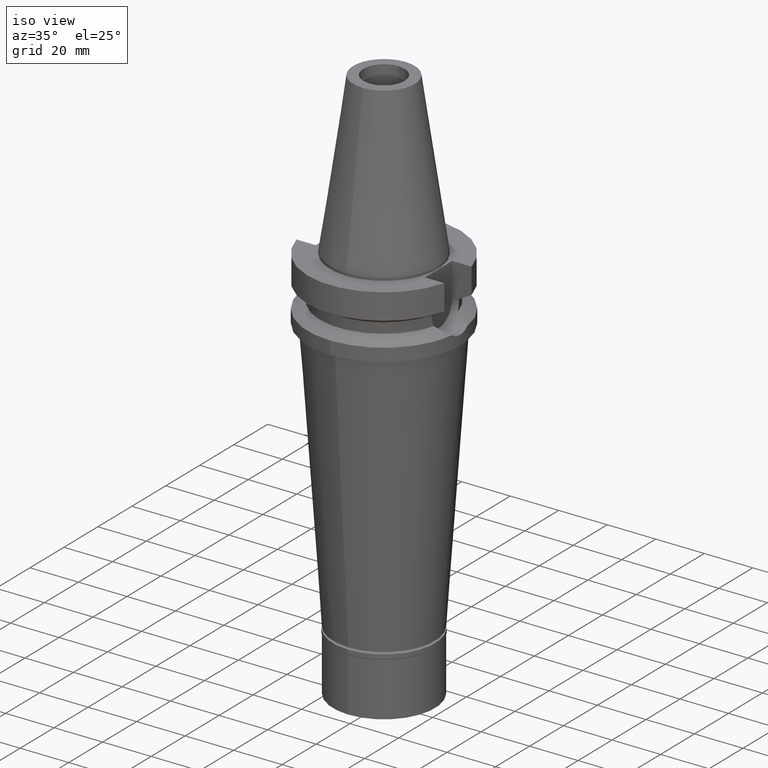
[diagram: clean part render]
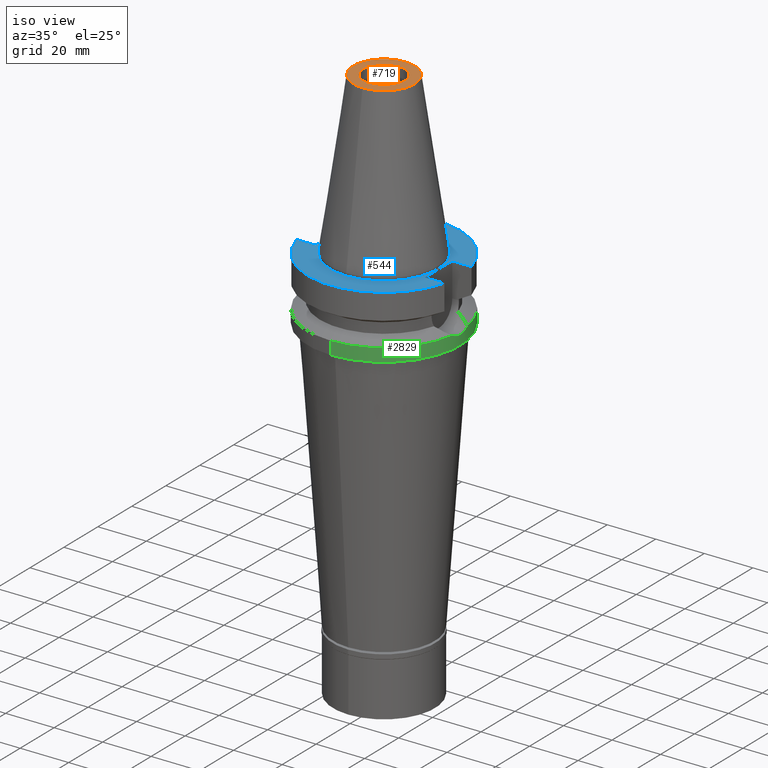
[diagram: same view with three faces highlighted in distinct colors, each labeled with its STEP entity id]
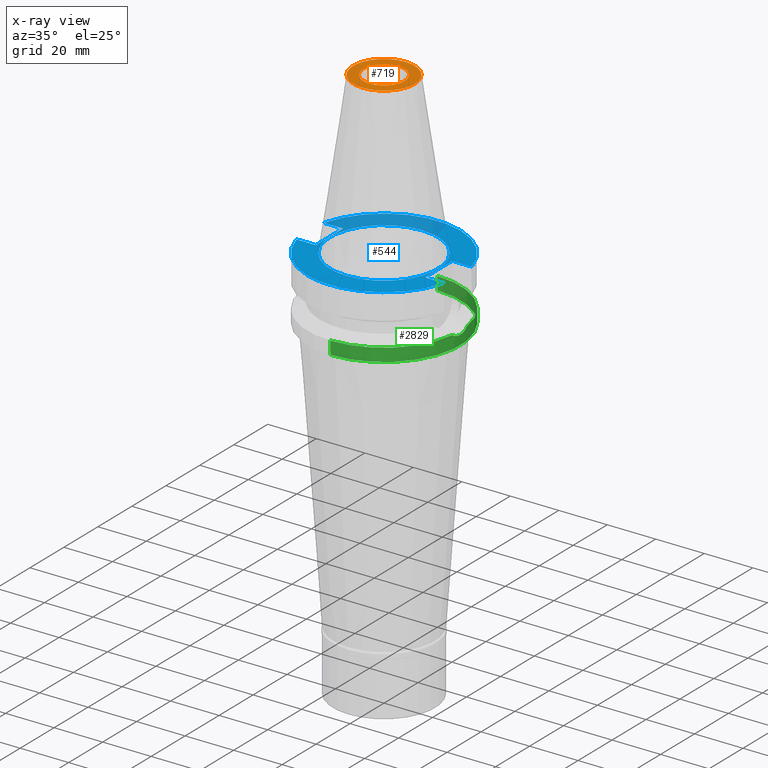
[diagram: x-ray of the same camera — body ghosted, the three highlighted faces saturated]
A machine part, iso view with three faces highlighted in distinct colors.
The next image is the same camera in x-ray (body ghosted, the three faces saturated) — at least one of them is partly hidden behind the body in this view.
Their STEP definitions:

[orange] entity #719 — the highlighted planar face has unit normal (0, 0, -1).
#2 = CARTESIAN_POINT ( 'NONE',  ( 0.0000000000000000000, 1.625106302469000024E-14, 65.40000000000000568 ) ) ;
#180 = CARTESIAN_POINT ( 'NONE',  ( 0.0000000000000000000, 8.500000000000000000, 65.40000000000000568 ) ) ;
#226 = DIRECTION ( 'NONE',  ( 0.0000000000000000000, -1.000000000000000000, 0.0000000000000000000 ) ) ;
#237 = CARTESIAN_POINT ( 'NONE',  ( 0.0000000000000000000, 1.625106302469000024E-14, 65.40000000000000568 ) ) ;
#313 = ORIENTED_EDGE ( 'NONE', *, *, #2986, .F. ) ;
#354 = EDGE_LOOP ( 'NONE', ( #313, #875 ) ) ;
#365 = VERTEX_POINT ( 'NONE', #180 ) ;
#570 = CIRCLE ( 'NONE', #2200, 8.500000000000000000 ) ;
#678 = CIRCLE ( 'NONE', #2450, 12.68766899429999917 ) ;
#689 = EDGE_LOOP ( 'NONE', ( #1551, #1581 ) ) ;
#708 = DIRECTION ( 'NONE',  ( 0.0000000000000000000, 0.0000000000000000000, 1.000000000000000000 ) ) ;
#719 = ADVANCED_FACE ( 'NONE', ( #766, #2492 ), #1759, .F. ) ;
#749 = DIRECTION ( 'NONE',  ( 0.0000000000000000000, -1.000000000000000000, 0.0000000000000000000 ) ) ;
#766 = FACE_OUTER_BOUND ( 'NONE', #354, .T. ) ;
#875 = ORIENTED_EDGE ( 'NONE', *, *, #2004, .F. ) ;
#928 = CIRCLE ( 'NONE', #2596, 12.68766899429999917 ) ;
#998 = DIRECTION ( 'NONE',  ( 0.0000000000000000000, 0.0000000000000000000, -1.000000000000000000 ) ) ;
#1007 = CARTESIAN_POINT ( 'NONE',  ( 0.0000000000000000000, -12.68766899429999917, 65.40000000000000568 ) ) ;
#1008 = CARTESIAN_POINT ( 'NONE',  ( 0.0000000000000000000, 2.025565805790000122E-14, 65.40000000000000568 ) ) ;
#1163 = DIRECTION ( 'NONE',  ( 0.0000000000000000000, 1.000000000000000000, 0.0000000000000000000 ) ) ;
#1178 = CIRCLE ( 'NONE', #2949, 8.500000000000000000 ) ;
#1386 = DIRECTION ( 'NONE',  ( 0.0000000000000000000, 0.0000000000000000000, 1.000000000000000000 ) ) ;
#1464 = DIRECTION ( 'NONE',  ( 0.0000000000000000000, -1.000000000000000000, 0.0000000000000000000 ) ) ;
#1470 = EDGE_CURVE ( 'NONE', #1555, #365, #1178, .T. ) ;
#1551 = ORIENTED_EDGE ( 'NONE', *, *, #2871, .F. ) ;
#1555 = VERTEX_POINT ( 'NONE', #2395 ) ;
#1581 = ORIENTED_EDGE ( 'NONE', *, *, #1470, .F. ) ;
#1759 = PLANE ( 'NONE',  #2345 ) ;
#1953 = DIRECTION ( 'NONE',  ( 0.0000000000000000000, 0.0000000000000000000, -1.000000000000000000 ) ) ;
#1960 = CARTESIAN_POINT ( 'NONE',  ( 0.0000000000000000000, 2.162052691555000099E-14, 65.40000000000000568 ) ) ;
#2004 = EDGE_CURVE ( 'NONE', #3077, #2637, #928, .T. ) ;
#2200 = AXIS2_PLACEMENT_3D ( 'NONE', #2622, #1386, #1163 ) ;
#2345 = AXIS2_PLACEMENT_3D ( 'NONE', #1008, #998, #749 ) ;
#2395 = CARTESIAN_POINT ( 'NONE',  ( 0.0000000000000000000, -8.500000000000000000, 65.40000000000000568 ) ) ;
#2450 = AXIS2_PLACEMENT_3D ( 'NONE', #237, #1953, #3122 ) ;
#2492 = FACE_BOUND ( 'NONE', #689, .T. ) ;
#2596 = AXIS2_PLACEMENT_3D ( 'NONE', #2, #2665, #226 ) ;
#2622 = CARTESIAN_POINT ( 'NONE',  ( 0.0000000000000000000, 2.162052691555000099E-14, 65.40000000000000568 ) ) ;
#2637 = VERTEX_POINT ( 'NONE', #2837 ) ;
#2665 = DIRECTION ( 'NONE',  ( 0.0000000000000000000, 0.0000000000000000000, -1.000000000000000000 ) ) ;
#2837 = CARTESIAN_POINT ( 'NONE',  ( 0.0000000000000000000, 12.68766899429999917, 65.40000000000000568 ) ) ;
#2871 = EDGE_CURVE ( 'NONE', #365, #1555, #570, .T. ) ;
#2949 = AXIS2_PLACEMENT_3D ( 'NONE', #1960, #708, #1464 ) ;
#2986 = EDGE_CURVE ( 'NONE', #2637, #3077, #678, .T. ) ;
#3077 = VERTEX_POINT ( 'NONE', #1007 ) ;
#3122 = DIRECTION ( 'NONE',  ( 0.0000000000000000000, 1.000000000000000000, 0.0000000000000000000 ) ) ;

[blue] entity #544 — the highlighted planar face has unit normal (0, 0, -1).
#31 = CARTESIAN_POINT ( 'NONE',  ( -22.50000000000000000, 8.050000000000000711, -1.000000000000000000 ) ) ;
#42 = ORIENTED_EDGE ( 'NONE', *, *, #1242, .F. ) ;
#150 = LINE ( 'NONE', #660, #2689 ) ;
#219 = CARTESIAN_POINT ( 'NONE',  ( 30.45402272279000044, -8.050000000000000711, -1.000000000000000000 ) ) ;
#243 = EDGE_CURVE ( 'NONE', #795, #2275, #1924, .T. ) ;
#266 = ORIENTED_EDGE ( 'NONE', *, *, #243, .F. ) ;
#307 = DIRECTION ( 'NONE',  ( 0.0000000000000000000, 1.000000000000000000, 0.0000000000000000000 ) ) ;
#324 = DIRECTION ( 'NONE',  ( 1.000000000000000000, -3.506251283225999947E-14, 0.0000000000000000000 ) ) ;
#339 = EDGE_CURVE ( 'NONE', #3072, #950, #2762, .T. ) ;
#364 = DIRECTION ( 'NONE',  ( 0.0000000000000000000, 0.0000000000000000000, -1.000000000000000000 ) ) ;
#447 = VERTEX_POINT ( 'NONE', #591 ) ;
#472 = DIRECTION ( 'NONE',  ( -1.000000000000000000, 3.550916904668000126E-14, 0.0000000000000000000 ) ) ;
#544 = ADVANCED_FACE ( 'NONE', ( #2874, #2168 ), #3124, .F. ) ;
#591 = CARTESIAN_POINT ( 'NONE',  ( 30.45402272279000044, 8.050000000000000711, -1.000000000000000000 ) ) ;
#625 = CARTESIAN_POINT ( 'NONE',  ( 0.0000000000000000000, 2.162052691555000099E-14, -1.000000000000000000 ) ) ;
#646 = DIRECTION ( 'NONE',  ( 0.0000000000000000000, -1.000000000000000000, 0.0000000000000000000 ) ) ;
#649 = CARTESIAN_POINT ( 'NONE',  ( 0.0000000000000000000, 22.22500000000000142, -1.000000000000000000 ) ) ;
#660 = CARTESIAN_POINT ( 'NONE',  ( 22.50000000000000000, 8.050000000000000711, -1.000000000000000000 ) ) ;
#683 = EDGE_LOOP ( 'NONE', ( #266, #799 ) ) ;
#747 = DIRECTION ( 'NONE',  ( 0.0000000000000000000, 1.000000000000000000, 0.0000000000000000000 ) ) ;
#795 = VERTEX_POINT ( 'NONE', #649 ) ;
#799 = ORIENTED_EDGE ( 'NONE', *, *, #1819, .F. ) ;
#805 = CARTESIAN_POINT ( 'NONE',  ( 22.50000000000000000, 8.050000000000000711, -1.000000000000000000 ) ) ;
#816 = VECTOR ( 'NONE', #472, 1000.000000000000000 ) ;
#857 = DIRECTION ( 'NONE',  ( 0.0000000000000000000, 1.000000000000000000, 0.0000000000000000000 ) ) ;
#863 = AXIS2_PLACEMENT_3D ( 'NONE', #2554, #2324, #307 ) ;
#920 = CARTESIAN_POINT ( 'NONE',  ( 22.50000000000000000, 8.050000000000000711, -1.000000000000000000 ) ) ;
#950 = VERTEX_POINT ( 'NONE', #1694 ) ;
#955 = ORIENTED_EDGE ( 'NONE', *, *, #2506, .F. ) ;
#967 = VERTEX_POINT ( 'NONE', #219 ) ;
#981 = ORIENTED_EDGE ( 'NONE', *, *, #1459, .T. ) ;
#995 = CARTESIAN_POINT ( 'NONE',  ( -22.50000000000000000, -8.050000000000000711, -1.000000000000000000 ) ) ;
#1140 = CARTESIAN_POINT ( 'NONE',  ( -22.50000000000000000, 8.050000000000000711, -1.000000000000000000 ) ) ;
#1150 = EDGE_CURVE ( 'NONE', #1374, #447, #1505, .T. ) ;
#1242 = EDGE_CURVE ( 'NONE', #1374, #1350, #150, .T. ) ;
#1300 = ORIENTED_EDGE ( 'NONE', *, *, #2750, .F. ) ;
#1313 = CARTESIAN_POINT ( 'NONE',  ( 0.0000000000000000000, 2.162052691555000099E-14, -1.000000000000000000 ) ) ;
#1332 = VECTOR ( 'NONE', #747, 1000.000000000000000 ) ;
#1350 = VERTEX_POINT ( 'NONE', #2129 ) ;
#1353 = DIRECTION ( 'NONE',  ( 1.000000000000000000, 3.573249715389999860E-14, 0.0000000000000000000 ) ) ;
#1374 = VERTEX_POINT ( 'NONE', #920 ) ;
#1378 = VECTOR ( 'NONE', #324, 1000.000000000000000 ) ;
#1433 = DIRECTION ( 'NONE',  ( 0.0000000000000000000, 0.0000000000000000000, -1.000000000000000000 ) ) ;
#1459 = EDGE_CURVE ( 'NONE', #2574, #2144, #2170, .T. ) ;
#1505 = LINE ( 'NONE', #805, #1378 ) ;
#1567 = DIRECTION ( 'NONE',  ( 0.0000000000000000000, -1.000000000000000000, 0.0000000000000000000 ) ) ;
#1619 = DIRECTION ( 'NONE',  ( -1.000000000000000000, -3.550916904668000126E-14, 0.0000000000000000000 ) ) ;
#1632 = AXIS2_PLACEMENT_3D ( 'NONE', #1313, #2362, #857 ) ;
#1694 = CARTESIAN_POINT ( 'NONE',  ( -30.45402272279000044, 8.050000000000000711, -1.000000000000000000 ) ) ;
#1698 = DIRECTION ( 'NONE',  ( 0.0000000000000000000, -1.000000000000000000, 0.0000000000000000000 ) ) ;
#1792 = LINE ( 'NONE', #2066, #2546 ) ;
#1806 = CARTESIAN_POINT ( 'NONE',  ( -22.50000000000000000, -8.050000000000000711, -1.000000000000000000 ) ) ;
#1819 = EDGE_CURVE ( 'NONE', #2275, #795, #2241, .T. ) ;
#1924 = CIRCLE ( 'NONE', #863, 22.22500000000000142 ) ;
#1944 = CARTESIAN_POINT ( 'NONE',  ( -22.50000000000000000, -8.050000000000000711, -1.000000000000000000 ) ) ;
#1985 = ORIENTED_EDGE ( 'NONE', *, *, #339, .F. ) ;
#2042 = AXIS2_PLACEMENT_3D ( 'NONE', #2760, #364, #1567 ) ;
#2066 = CARTESIAN_POINT ( 'NONE',  ( 22.50000000000000000, -8.050000000000000711, -1.000000000000000000 ) ) ;
#2129 = CARTESIAN_POINT ( 'NONE',  ( 22.50000000000000000, -8.050000000000000711, -1.000000000000000000 ) ) ;
#2144 = VERTEX_POINT ( 'NONE', #2453 ) ;
#2168 = FACE_BOUND ( 'NONE', #683, .T. ) ;
#2170 = LINE ( 'NONE', #1944, #816 ) ;
#2241 = CIRCLE ( 'NONE', #2793, 22.22500000000000142 ) ;
#2275 = VERTEX_POINT ( 'NONE', #2938 ) ;
#2324 = DIRECTION ( 'NONE',  ( 0.0000000000000000000, 0.0000000000000000000, 1.000000000000000000 ) ) ;
#2355 = ORIENTED_EDGE ( 'NONE', *, *, #2563, .F. ) ;
#2362 = DIRECTION ( 'NONE',  ( 0.0000000000000000000, 0.0000000000000000000, -1.000000000000000000 ) ) ;
#2366 = DIRECTION ( 'NONE',  ( 0.0000000000000000000, 0.0000000000000000000, 1.000000000000000000 ) ) ;
#2377 = CARTESIAN_POINT ( 'NONE',  ( 0.0000000000000000000, 1.212400331155999925E-14, -1.000000000000000000 ) ) ;
#2404 = LINE ( 'NONE', #995, #1332 ) ;
#2442 = ORIENTED_EDGE ( 'NONE', *, *, #1150, .T. ) ;
#2448 = EDGE_CURVE ( 'NONE', #1350, #967, #1792, .T. ) ;
#2453 = CARTESIAN_POINT ( 'NONE',  ( -30.45402272279000044, -8.050000000000000711, -1.000000000000000000 ) ) ;
#2506 = EDGE_CURVE ( 'NONE', #967, #2144, #2742, .T. ) ;
#2546 = VECTOR ( 'NONE', #1353, 1000.000000000000000 ) ;
#2554 = CARTESIAN_POINT ( 'NONE',  ( 0.0000000000000000000, 2.162052691555000099E-14, -1.000000000000000000 ) ) ;
#2563 = EDGE_CURVE ( 'NONE', #950, #447, #3002, .T. ) ;
#2571 = ORIENTED_EDGE ( 'NONE', *, *, #2448, .F. ) ;
#2574 = VERTEX_POINT ( 'NONE', #1806 ) ;
#2588 = VECTOR ( 'NONE', #1619, 1000.000000000000000 ) ;
#2689 = VECTOR ( 'NONE', #646, 1000.000000000000000 ) ;
#2734 = AXIS2_PLACEMENT_3D ( 'NONE', #2377, #1433, #1698 ) ;
#2742 = CIRCLE ( 'NONE', #2042, 31.50000000000000000 ) ;
#2750 = EDGE_CURVE ( 'NONE', #2574, #3072, #2404, .T. ) ;
#2760 = CARTESIAN_POINT ( 'NONE',  ( 0.0000000000000000000, 2.162052691555000099E-14, -1.000000000000000000 ) ) ;
#2762 = LINE ( 'NONE', #1140, #2588 ) ;
#2793 = AXIS2_PLACEMENT_3D ( 'NONE', #625, #2366, #3045 ) ;
#2874 = FACE_OUTER_BOUND ( 'NONE', #2875, .T. ) ;
#2875 = EDGE_LOOP ( 'NONE', ( #981, #955, #2571, #42, #2442, #2355, #1985, #1300 ) ) ;
#2938 = CARTESIAN_POINT ( 'NONE',  ( 0.0000000000000000000, -22.22500000000000142, -1.000000000000000000 ) ) ;
#3002 = CIRCLE ( 'NONE', #1632, 31.50000000000000000 ) ;
#3045 = DIRECTION ( 'NONE',  ( 0.0000000000000000000, -1.000000000000000000, 0.0000000000000000000 ) ) ;
#3072 = VERTEX_POINT ( 'NONE', #31 ) ;
#3124 = PLANE ( 'NONE',  #2734 ) ;

[green] entity #2829 — the highlighted cylindrical surface (partial cylindrical patch) has radius 31.5 mm, axis along (0, 0, -1).
#86 = CARTESIAN_POINT ( 'NONE',  ( 31.38990480636528346, -2.631663214737754330, -22.55863313227447264 ) ) ;
#102 = CIRCLE ( 'NONE', #1624, 31.50000000000000000 ) ;
#146 = CARTESIAN_POINT ( 'NONE',  ( 0.0000000000000000000, 31.50000000000000000, -21.63449434733000132 ) ) ;
#161 = CYLINDRICAL_SURFACE ( 'NONE', #1483, 31.50000000000000000 ) ;
#168 = LINE ( 'NONE', #1625, #2539 ) ;
#179 = B_SPLINE_CURVE_WITH_KNOTS ( 'NONE', 3,
 ( #969, #495, #1458, #836, #1536, #2011, #86, #2529, #305, #818, #1063, #582, #2023, #596, #2269 ),
 .UNSPECIFIED., .F., .F.,
 ( 4, 2, 2, 1, 1, 1, 2, 2, 4 ),
 ( 0.0000000000000000000, 0.2500000000000097700, 0.3750000000000146549, 0.4375000000000168754, 0.4687500000000180411, 0.4843750000000193179, 0.4921875000000195954, 0.5000000000000198730, 1.000000000000000000 ),
 .UNSPECIFIED. ) ;
#199 = VERTEX_POINT ( 'NONE', #2812 ) ;
#238 = CARTESIAN_POINT ( 'NONE',  ( 0.0000000000000000000, 2.162052691555000099E-14, -27.00000000000000000 ) ) ;
#284 = EDGE_CURVE ( 'NONE', #1687, #3147, #2266, .T. ) ;
#300 = CARTESIAN_POINT ( 'NONE',  ( 31.50000000000000000, 0.0000000000000000000, -23.00000000000000000 ) ) ;
#305 = CARTESIAN_POINT ( 'NONE',  ( 31.40779731677324804, -2.407006719812131657, -22.63177601695514696 ) ) ;
#346 = CARTESIAN_POINT ( 'NONE',  ( 31.50000000000000000, 0.3826895716287472271, -23.00000000000000355 ) ) ;
#415 = AXIS2_PLACEMENT_3D ( 'NONE', #1550, #1263, #1561 ) ;
#452 = DIRECTION ( 'NONE',  ( 0.0000000000000000000, 1.000000000000000000, 0.0000000000000000000 ) ) ;
#495 = CARTESIAN_POINT ( 'NONE',  ( 31.23204570955487824, -4.116806570564255807, -21.88192522055955536 ) ) ;
#582 = CARTESIAN_POINT ( 'NONE',  ( 31.41247682364344840, -2.345069939845430440, -22.65086411841247127 ) ) ;
#596 = CARTESIAN_POINT ( 'NONE',  ( 31.49999999999999289, -0.7653601880254619072, -23.00000000000000355 ) ) ;
#637 = DIRECTION ( 'NONE',  ( 0.0000000000000000000, 0.0000000000000000000, -1.000000000000000000 ) ) ;
#638 = CARTESIAN_POINT ( 'NONE',  ( 31.50000000000000000, 0.0000000000000000000, -23.00000000000000000 ) ) ;
#657 = EDGE_CURVE ( 'NONE', #1970, #3147, #102, .T. ) ;
#663 = EDGE_CURVE ( 'NONE', #199, #3135, #2189, .T. ) ;
#818 = CARTESIAN_POINT ( 'NONE',  ( 31.41021000375918959, -2.375210907036503727, -22.64161853887501508 ) ) ;
#836 = CARTESIAN_POINT ( 'NONE',  ( 31.33669595906752292, -3.204496348448598209, -22.33738104418285531 ) ) ;
#858 = EDGE_LOOP ( 'NONE', ( #2015, #2219, #1283, #1135, #2327, #2102, #970 ) ) ;
#913 = FACE_OUTER_BOUND ( 'NONE', #858, .T. ) ;
#969 = CARTESIAN_POINT ( 'NONE',  ( 31.17899877608999759, -4.485536235554000051, -21.63449434733000132 ) ) ;
#970 = ORIENTED_EDGE ( 'NONE', *, *, #1067, .F. ) ;
#980 = DIRECTION ( 'NONE',  ( 0.0000000000000000000, -1.000000000000000000, 0.0000000000000000000 ) ) ;
#1009 = CARTESIAN_POINT ( 'NONE',  ( 0.0000000000000000000, -31.50000000000000000, -21.63449434733000132 ) ) ;
#1063 = CARTESIAN_POINT ( 'NONE',  ( 31.41180480594701763, -2.354042824091584940, -22.64812347152304284 ) ) ;
#1067 = EDGE_CURVE ( 'NONE', #2536, #1687, #179, .T. ) ;
#1092 = EDGE_CURVE ( 'NONE', #2536, #1910, #1372, .T. ) ;
#1097 = CARTESIAN_POINT ( 'NONE',  ( 31.17899877608999759, 4.485536235554000051, -21.63449434733000132 ) ) ;
#1135 = ORIENTED_EDGE ( 'NONE', *, *, #1400, .F. ) ;
#1136 = DIRECTION ( 'NONE',  ( 0.0000000000000000000, -1.000000000000000000, 0.0000000000000000000 ) ) ;
#1137 = CARTESIAN_POINT ( 'NONE',  ( 31.49278049642385824, 0.7713483626019259631, -22.97266538105663614 ) ) ;
#1139 = CARTESIAN_POINT ( 'NONE',  ( 31.44585372317890304, 1.845677893369964462, -22.78619768338460005 ) ) ;
#1144 = DIRECTION ( 'NONE',  ( 0.0000000000000000000, 1.099151708819000049E-13, -1.000000000000000000 ) ) ;
#1263 = DIRECTION ( 'NONE',  ( 0.0000000000000000000, 0.0000000000000000000, -1.000000000000000000 ) ) ;
#1277 = VECTOR ( 'NONE', #2245, 1000.000000000000000 ) ;
#1283 = ORIENTED_EDGE ( 'NONE', *, *, #663, .T. ) ;
#1335 = CARTESIAN_POINT ( 'NONE',  ( 31.17899877608999759, -4.485536235554000051, -21.63449434733000132 ) ) ;
#1357 = CARTESIAN_POINT ( 'NONE',  ( 31.42560527174269325, 2.162789075918809534, -22.70431026641477601 ) ) ;
#1372 = CIRCLE ( 'NONE', #415, 31.50000000000001421 ) ;
#1400 = EDGE_CURVE ( 'NONE', #1970, #3135, #168, .T. ) ;
#1404 = CARTESIAN_POINT ( 'NONE',  ( 31.41414960750307017, 2.322543565497372953, -22.65768531844570077 ) ) ;
#1458 = CARTESIAN_POINT ( 'NONE',  ( 31.27810087198237099, -3.746788055358713621, -22.08602560427802786 ) ) ;
#1483 = AXIS2_PLACEMENT_3D ( 'NONE', #3103, #637, #1136 ) ;
#1491 = CARTESIAN_POINT ( 'NONE',  ( 31.36321233040992240, 3.008498623022830110, -22.44996234364747423 ) ) ;
#1536 = CARTESIAN_POINT ( 'NONE',  ( 31.35447971200322570, -3.025805952337123461, -22.41205623236864852 ) ) ;
#1550 = CARTESIAN_POINT ( 'NONE',  ( 0.0000000000000000000, 0.0000000000000000000, -21.63449434733000132 ) ) ;
#1561 = DIRECTION ( 'NONE',  ( 0.9898094849552905306, -0.1423979757318985240, 0.0000000000000000000 ) ) ;
#1624 = AXIS2_PLACEMENT_3D ( 'NONE', #2124, #2886, #452 ) ;
#1625 = CARTESIAN_POINT ( 'NONE',  ( 0.0000000000000000000, 31.50000000000000000, -21.63449434733000132 ) ) ;
#1653 = CARTESIAN_POINT ( 'NONE',  ( 31.28508993674450522, 3.748095716842307912, -22.12934347074813246 ) ) ;
#1687 = VERTEX_POINT ( 'NONE', #300 ) ;
#1848 = CARTESIAN_POINT ( 'NONE',  ( 31.41516378268383036, 2.308787884451288352, -22.66181946406428338 ) ) ;
#1865 = CARTESIAN_POINT ( 'NONE',  ( 0.0000000000000000000, -31.50000000000000000, -21.63449434733000132 ) ) ;
#1873 = CARTESIAN_POINT ( 'NONE',  ( 31.41958431856491885, 2.247983644780538359, -22.67982499013886866 ) ) ;
#1905 = CARTESIAN_POINT ( 'NONE',  ( 31.17899877608999759, 4.485536235554000051, -21.63449434733000132 ) ) ;
#1910 = VERTEX_POINT ( 'NONE', #1865 ) ;
#1970 = VERTEX_POINT ( 'NONE', #146 ) ;
#2011 = CARTESIAN_POINT ( 'NONE',  ( 31.37853342726776162, -2.762293135434263469, -22.51181577750941898 ) ) ;
#2015 = ORIENTED_EDGE ( 'NONE', *, *, #1092, .T. ) ;
#2023 = CARTESIAN_POINT ( 'NONE',  ( 31.47112637481020414, -1.555232886057160702, -22.89002501745331486 ) ) ;
#2102 = ORIENTED_EDGE ( 'NONE', *, *, #284, .F. ) ;
#2124 = CARTESIAN_POINT ( 'NONE',  ( 0.0000000000000000000, 0.0000000000000000000, -21.63449434733000132 ) ) ;
#2180 = DIRECTION ( 'NONE',  ( 0.0000000000000000000, 0.0000000000000000000, 1.000000000000000000 ) ) ;
#2189 = CIRCLE ( 'NONE', #2591, 31.50000000000000000 ) ;
#2219 = ORIENTED_EDGE ( 'NONE', *, *, #2234, .T. ) ;
#2228 = CARTESIAN_POINT ( 'NONE',  ( 31.46209760622523177, 1.552528018133348064, -22.85140752205186132 ) ) ;
#2234 = EDGE_CURVE ( 'NONE', #1910, #199, #2976, .T. ) ;
#2245 = DIRECTION ( 'NONE',  ( 0.0000000000000000000, -1.105773104655000034E-13, -1.000000000000000000 ) ) ;
#2258 = CARTESIAN_POINT ( 'NONE',  ( 31.47112198569541164, 1.356918673298910027, -22.88726535037577747 ) ) ;
#2266 = B_SPLINE_CURVE_WITH_KNOTS ( 'NONE', 3,
 ( #638, #346, #1137, #2258, #2228, #1139, #2562, #1357, #1873, #3063, #1848, #1404, #1491, #1653, #1905 ),
 .UNSPECIFIED., .F., .F.,
 ( 4, 2, 2, 1, 1, 1, 2, 2, 4 ),
 ( 0.0000000000000000000, 0.2499999999999947820, 0.3749999999999918954, 0.4374999999999904521, 0.4687499999999897304, 0.4843749999999896749, 0.4921874999999893419, 0.4999999999999890088, 1.000000000000000000 ),
 .UNSPECIFIED. ) ;
#2269 = CARTESIAN_POINT ( 'NONE',  ( 31.50000000000000000, 0.0000000000000000000, -23.00000000000000000 ) ) ;
#2327 = ORIENTED_EDGE ( 'NONE', *, *, #657, .T. ) ;
#2529 = CARTESIAN_POINT ( 'NONE',  ( 31.40202432787654629, -2.481499151317003271, -22.60820932344074308 ) ) ;
#2536 = VERTEX_POINT ( 'NONE', #1335 ) ;
#2539 = VECTOR ( 'NONE', #1144, 1000.000000000000000 ) ;
#2562 = CARTESIAN_POINT ( 'NONE',  ( 31.43705495319547438, 1.992185818779079742, -22.75073800057327489 ) ) ;
#2591 = AXIS2_PLACEMENT_3D ( 'NONE', #238, #2180, #980 ) ;
#2711 = CARTESIAN_POINT ( 'NONE',  ( 0.0000000000000000000, 31.50000000000000000, -27.00000000000000000 ) ) ;
#2812 = CARTESIAN_POINT ( 'NONE',  ( 0.0000000000000000000, -31.50000000000000000, -27.00000000000000000 ) ) ;
#2829 = ADVANCED_FACE ( 'NONE', ( #913 ), #161, .T. ) ;
#2886 = DIRECTION ( 'NONE',  ( 0.0000000000000000000, 0.0000000000000000000, -1.000000000000000000 ) ) ;
#2976 = LINE ( 'NONE', #1009, #1277 ) ;
#3063 = CARTESIAN_POINT ( 'NONE',  ( 31.41694045739201613, 2.284469817397010161, -22.66905814171080991 ) ) ;
#3103 = CARTESIAN_POINT ( 'NONE',  ( 0.0000000000000000000, 2.162052691555000099E-14, 76.54500000000000171 ) ) ;
#3135 = VERTEX_POINT ( 'NONE', #2711 ) ;
#3147 = VERTEX_POINT ( 'NONE', #1097 ) ;